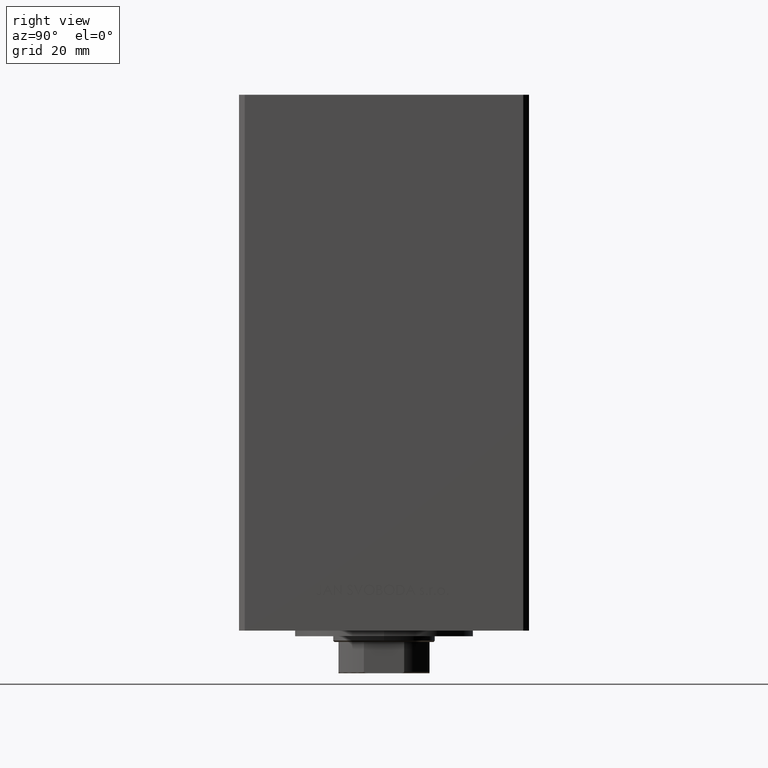
[diagram: clean part render]
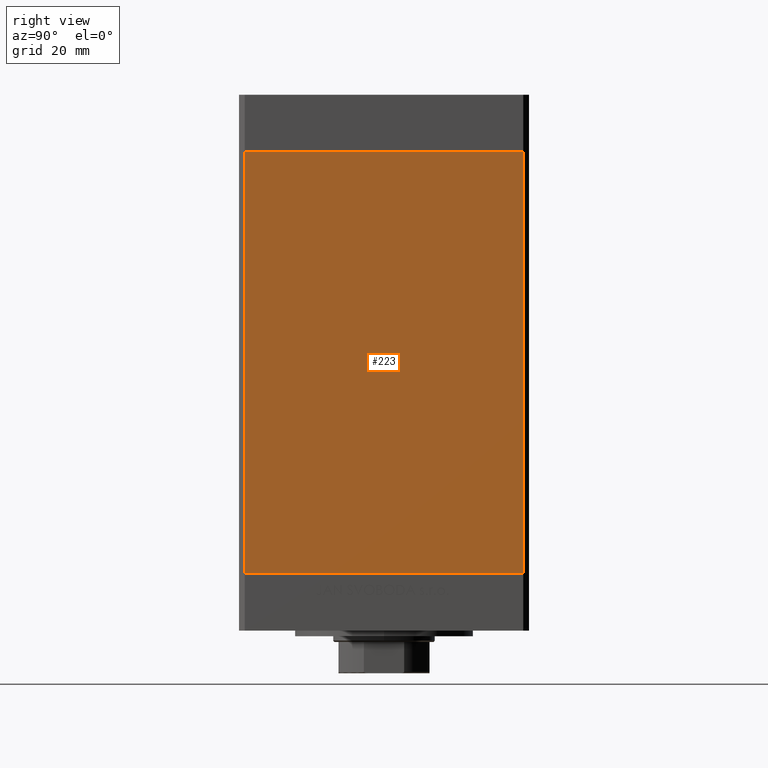
[diagram: same view with one face highlighted and labeled with its STEP entity id]
A machine part, right view. The second image highlights one B-rep face of the part: STEP entity #223.
In plain terms, the highlighted planar face has unit normal (1, -0, 0).
Its self-contained STEP definition (entity closure, byte-faithful):
#223 = ADVANCED_FACE ( 'NONE', ( #14769 ), #49280, .T. ) ;
#1536 = CARTESIAN_POINT ( 'NONE',  ( 59.99999999999998579, -49.00000000000000000, 148.5000000000000000 ) ) ;
#5105 = CARTESIAN_POINT ( 'NONE',  ( 60.00000000000001421, 49.00000000000000000, 0.000000000000000000 ) ) ;
#6107 = VERTEX_POINT ( 'NONE', #30862 ) ;
#6864 = AXIS2_PLACEMENT_3D ( 'NONE', #7153, #25688, #10961 ) ;
#7148 = ORIENTED_EDGE ( 'NONE', *, *, #35764, .T. ) ;
#7153 = CARTESIAN_POINT ( 'NONE',  ( 60.00000000000001421, 49.00000000000000000, 148.5000000000000000 ) ) ;
#7276 = CARTESIAN_POINT ( 'NONE',  ( 60.00000000000001421, 49.00000000000000000, 148.5000000000000000 ) ) ;
#8342 = VECTOR ( 'NONE', #27045, 1000.000000000000000 ) ;
#8908 = DIRECTION ( 'NONE',  ( -2.832201593431521726E-16, -1.000000000000000000, 0.000000000000000000 ) ) ;
#9816 = VECTOR ( 'NONE', #8908, 1000.000000000000000 ) ;
#10961 = DIRECTION ( 'NONE',  ( 2.832201593431521726E-16, 1.000000000000000000, 0.000000000000000000 ) ) ;
#13171 = DIRECTION ( 'NONE',  ( -0.000000000000000000, -0.000000000000000000, -1.000000000000000000 ) ) ;
#13237 = VERTEX_POINT ( 'NONE', #43718 ) ;
#14393 = VECTOR ( 'NONE', #13171, 1000.000000000000000 ) ;
#14769 = FACE_OUTER_BOUND ( 'NONE', #18204, .T. ) ;
#15365 = EDGE_CURVE ( 'NONE', #13237, #30883, #16481, .T. ) ;
#16481 = LINE ( 'NONE', #1536, #14393 ) ;
#18204 = EDGE_LOOP ( 'NONE', ( #43407, #29680, #7148, #44053 ) ) ;
#19912 = CARTESIAN_POINT ( 'NONE',  ( 59.99999999999998579, -49.00000000000000000, 0.000000000000000000 ) ) ;
#22558 = VERTEX_POINT ( 'NONE', #29779 ) ;
#25688 = DIRECTION ( 'NONE',  ( 1.000000000000000000, -2.832201593431521726E-16, 0.000000000000000000 ) ) ;
#25991 = LINE ( 'NONE', #34604, #30828 ) ;
#26801 = EDGE_CURVE ( 'NONE', #6107, #22558, #25991, .T. ) ;
#27045 = DIRECTION ( 'NONE',  ( -2.832201593431521726E-16, -1.000000000000000000, 0.000000000000000000 ) ) ;
#27929 = EDGE_CURVE ( 'NONE', #22558, #30883, #39601, .T. ) ;
#29680 = ORIENTED_EDGE ( 'NONE', *, *, #26801, .F. ) ;
#29779 = CARTESIAN_POINT ( 'NONE',  ( 60.00000000000001421, 49.00000000000000000, 0.000000000000000000 ) ) ;
#30612 = LINE ( 'NONE', #7276, #8342 ) ;
#30828 = VECTOR ( 'NONE', #49814, 1000.000000000000000 ) ;
#30862 = CARTESIAN_POINT ( 'NONE',  ( 60.00000000000001421, 49.00000000000000000, 148.5000000000000000 ) ) ;
#30883 = VERTEX_POINT ( 'NONE', #19912 ) ;
#34604 = CARTESIAN_POINT ( 'NONE',  ( 60.00000000000001421, 49.00000000000000000, 148.5000000000000000 ) ) ;
#35764 = EDGE_CURVE ( 'NONE', #6107, #13237, #30612, .T. ) ;
#39601 = LINE ( 'NONE', #5105, #9816 ) ;
#43407 = ORIENTED_EDGE ( 'NONE', *, *, #27929, .F. ) ;
#43718 = CARTESIAN_POINT ( 'NONE',  ( 59.99999999999998579, -49.00000000000000000, 148.5000000000000000 ) ) ;
#44053 = ORIENTED_EDGE ( 'NONE', *, *, #15365, .T. ) ;
#49280 = PLANE ( 'NONE',  #6864 ) ;
#49814 = DIRECTION ( 'NONE',  ( -0.000000000000000000, -0.000000000000000000, -1.000000000000000000 ) ) ;